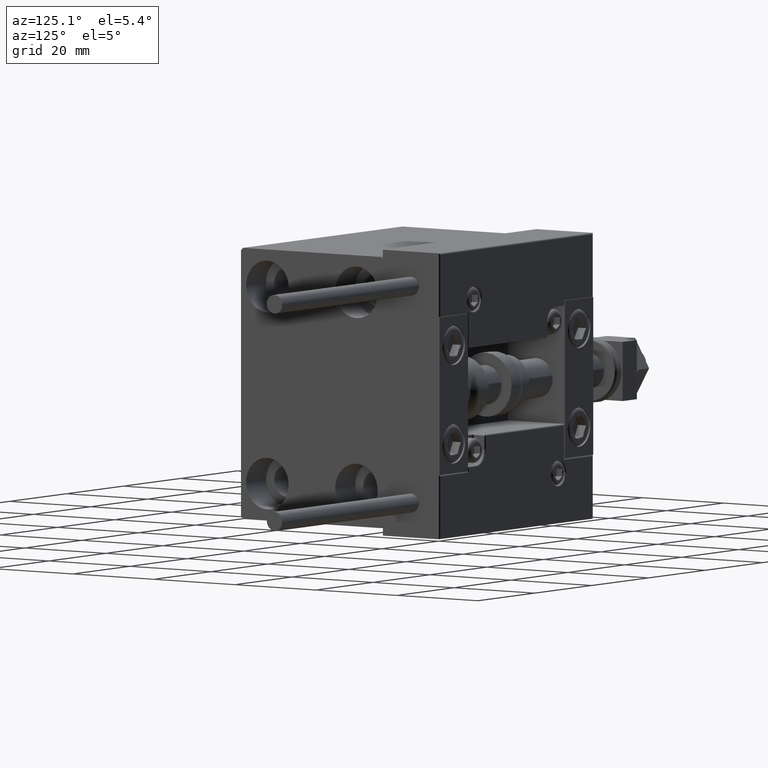
[diagram: clean part render]
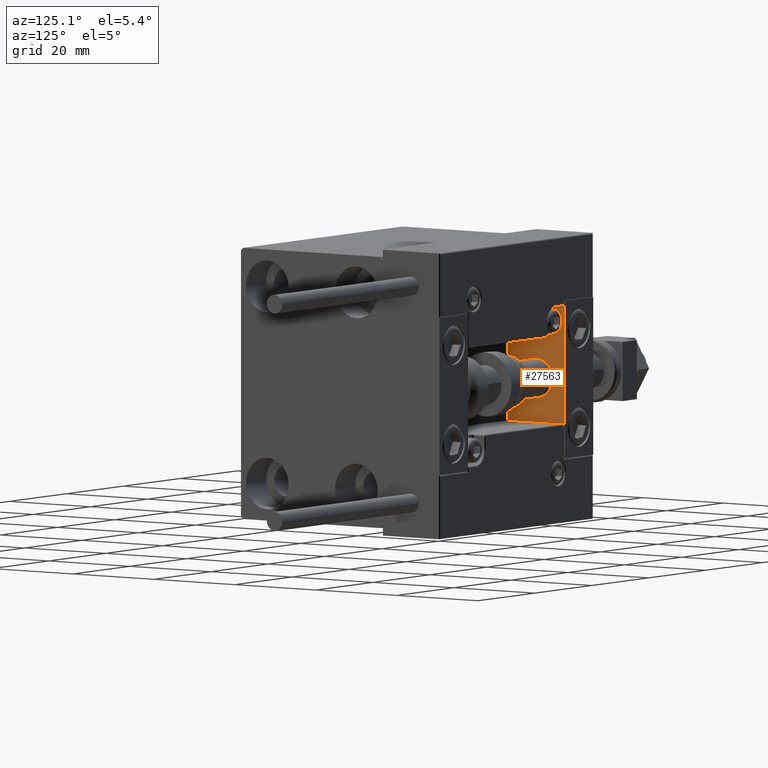
[diagram: same view with one face highlighted and labeled with its STEP entity id]
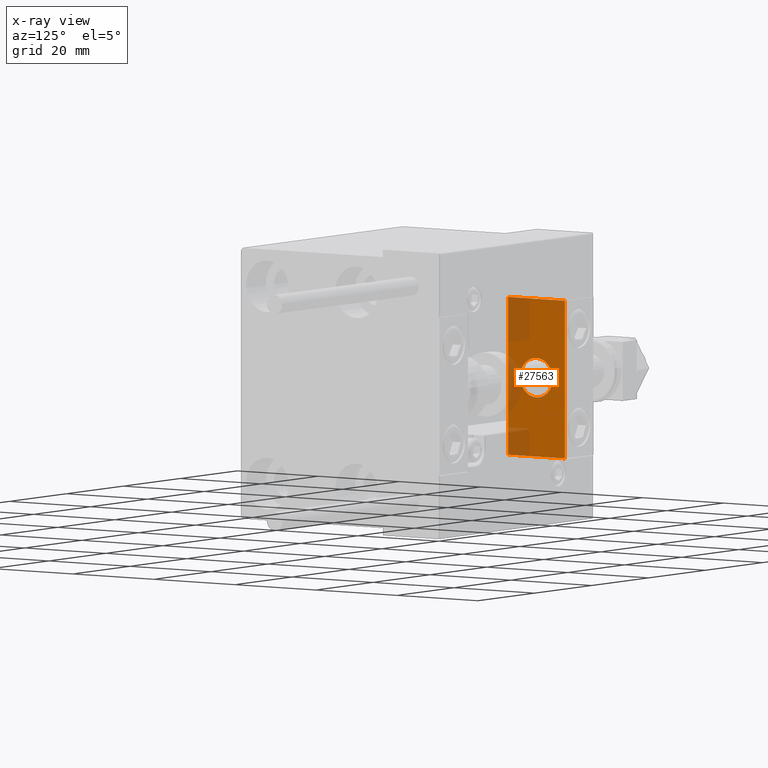
[diagram: x-ray of the same camera — body ghosted, the highlighted face saturated]
A machine part, auxiliary view. The second image highlights one B-rep face of the part: STEP entity #27563.
The next image is the same camera in x-ray: the body ghosted, the highlighted face saturated — about 26% of this face is hidden behind the body in this view.
In plain terms, the highlighted planar face has unit normal (1, 0, -0).
Its self-contained STEP definition (entity closure, byte-faithful):
#152 = ORIENTED_EDGE ( 'NONE', *, *, #11300, .T. ) ;
#473 = EDGE_CURVE ( 'NONE', #3932, #20882, #14180, .T. ) ;
#871 = VECTOR ( 'NONE', #37795, 1000.000000000000000 ) ;
#3164 = LINE ( 'NONE', #14888, #27041 ) ;
#3308 = DIRECTION ( 'NONE',  ( -1.000000000000000000, 0.000000000000000000, -0.000000000000000000 ) ) ;
#3418 = DIRECTION ( 'NONE',  ( 0.000000000000000000, 0.000000000000000000, -1.000000000000000000 ) ) ;
#3932 = VERTEX_POINT ( 'NONE', #28421 ) ;
#5000 = VERTEX_POINT ( 'NONE', #46722 ) ;
#5868 = CARTESIAN_POINT ( 'NONE',  ( 0.000000000000000000, -7.000000000000000000, 15.99999999999999289 ) ) ;
#5908 = EDGE_LOOP ( 'NONE', ( #38685, #23148 ) ) ;
#8035 = CIRCLE ( 'NONE', #39745, 4.000000000000000000 ) ;
#8330 = ORIENTED_EDGE ( 'NONE', *, *, #48303, .T. ) ;
#10513 = LINE ( 'NONE', #45681, #871 ) ;
#11300 = EDGE_CURVE ( 'NONE', #20870, #5000, #11654, .T. ) ;
#11654 = LINE ( 'NONE', #19332, #25840 ) ;
#13379 = AXIS2_PLACEMENT_3D ( 'NONE', #32617, #32370, #48628 ) ;
#14180 = CIRCLE ( 'NONE', #13379, 4.000000000000000000 ) ;
#14888 = CARTESIAN_POINT ( 'NONE',  ( 0.000000000000000000, 7.000000000000000000, 15.99999999999999289 ) ) ;
#15283 = PLANE ( 'NONE',  #47139 ) ;
#15463 = EDGE_CURVE ( 'NONE', #34716, #5000, #29092, .T. ) ;
#17086 = CARTESIAN_POINT ( 'NONE',  ( 0.000000000000000000, 4.898587196589412829E-16, -4.000000000000000000 ) ) ;
#18119 = EDGE_LOOP ( 'NONE', ( #26857, #37144, #8330, #152 ) ) ;
#19332 = CARTESIAN_POINT ( 'NONE',  ( 0.000000000000000000, 7.000000000000000000, -16.00000000000000711 ) ) ;
#19507 = CARTESIAN_POINT ( 'NONE',  ( 0.000000000000000000, -7.000000000000000000, 15.99999999999999289 ) ) ;
#19823 = VERTEX_POINT ( 'NONE', #32608 ) ;
#20870 = VERTEX_POINT ( 'NONE', #26834 ) ;
#20882 = VERTEX_POINT ( 'NONE', #17086 ) ;
#23148 = ORIENTED_EDGE ( 'NONE', *, *, #26571, .F. ) ;
#25840 = VECTOR ( 'NONE', #42227, 1000.000000000000000 ) ;
#26571 = EDGE_CURVE ( 'NONE', #20882, #3932, #8035, .T. ) ;
#26834 = CARTESIAN_POINT ( 'NONE',  ( 0.000000000000000000, 7.000000000000000000, -16.00000000000000711 ) ) ;
#26857 = ORIENTED_EDGE ( 'NONE', *, *, #15463, .F. ) ;
#27041 = VECTOR ( 'NONE', #3418, 1000.000000000000000 ) ;
#27563 = ADVANCED_FACE ( 'NONE', ( #37949, #30320 ), #15283, .T. ) ;
#28421 = CARTESIAN_POINT ( 'NONE',  ( 0.000000000000000000, 0.000000000000000000, 4.000000000000000000 ) ) ;
#28558 = CARTESIAN_POINT ( 'NONE',  ( 0.000000000000000000, 0.000000000000000000, 0.000000000000000000 ) ) ;
#29092 = LINE ( 'NONE', #5868, #44677 ) ;
#30320 = FACE_OUTER_BOUND ( 'NONE', #18119, .T. ) ;
#30330 = DIRECTION ( 'NONE',  ( -0.000000000000000000, 0.000000000000000000, 1.000000000000000000 ) ) ;
#30379 = EDGE_CURVE ( 'NONE', #19823, #34716, #10513, .T. ) ;
#30833 = CARTESIAN_POINT ( 'NONE',  ( 0.000000000000000000, 0.000000000000000000, 0.000000000000000000 ) ) ;
#32370 = DIRECTION ( 'NONE',  ( -1.000000000000000000, -0.000000000000000000, -0.000000000000000000 ) ) ;
#32417 = DIRECTION ( 'NONE',  ( 0.000000000000000000, 0.000000000000000000, -1.000000000000000000 ) ) ;
#32608 = CARTESIAN_POINT ( 'NONE',  ( 0.000000000000000000, 7.000000000000000000, 15.99999999999999289 ) ) ;
#32617 = CARTESIAN_POINT ( 'NONE',  ( 0.000000000000000000, 0.000000000000000000, 0.000000000000000000 ) ) ;
#34716 = VERTEX_POINT ( 'NONE', #19507 ) ;
#36437 = DIRECTION ( 'NONE',  ( 0.000000000000000000, 0.000000000000000000, 1.000000000000000000 ) ) ;
#37144 = ORIENTED_EDGE ( 'NONE', *, *, #30379, .F. ) ;
#37795 = DIRECTION ( 'NONE',  ( 0.000000000000000000, -1.000000000000000000, 0.000000000000000000 ) ) ;
#37949 = FACE_BOUND ( 'NONE', #5908, .T. ) ;
#38685 = ORIENTED_EDGE ( 'NONE', *, *, #473, .F. ) ;
#39745 = AXIS2_PLACEMENT_3D ( 'NONE', #28558, #44312, #36437 ) ;
#42227 = DIRECTION ( 'NONE',  ( 0.000000000000000000, -1.000000000000000000, 0.000000000000000000 ) ) ;
#44312 = DIRECTION ( 'NONE',  ( -1.000000000000000000, -0.000000000000000000, -0.000000000000000000 ) ) ;
#44677 = VECTOR ( 'NONE', #32417, 1000.000000000000000 ) ;
#45681 = CARTESIAN_POINT ( 'NONE',  ( 0.000000000000000000, 7.000000000000000000, 15.99999999999999289 ) ) ;
#46722 = CARTESIAN_POINT ( 'NONE',  ( 0.000000000000000000, -7.000000000000000000, -16.00000000000000711 ) ) ;
#47139 = AXIS2_PLACEMENT_3D ( 'NONE', #30833, #3308, #30330 ) ;
#48303 = EDGE_CURVE ( 'NONE', #19823, #20870, #3164, .T. ) ;
#48628 = DIRECTION ( 'NONE',  ( 0.000000000000000000, 0.000000000000000000, 1.000000000000000000 ) ) ;